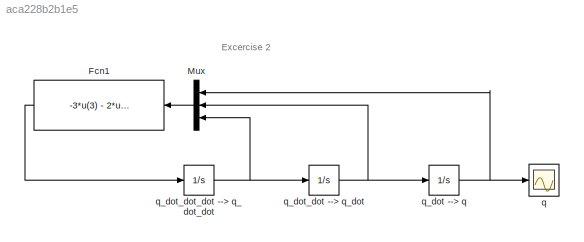
MODEL slx_aca228b2b1e5
KIND model
BLOCK [Fcn] Fcn1
  Expr = -3*u(3) - 2*u(2) - sin(u(1))
BLOCK [Mux] Mux
  DisplayOption = bar
  Inputs = 3
  Ports = [3, 1]
BLOCK [Scope] q
  DataFormat = StructureWithTime
  Floating = off
  NumInputPorts = 1
  Ports = [1]
  SampleTime = 0
  SaveName = ScopeData1
  ShowLegends = off
BLOCK [Integrator] q_dot --> q
  InitialCondition = q_0
  Ports = [1, 1]
BLOCK [Integrator] q_dot_dot --> q_dot
  InitialCondition = q_dot_0
  Ports = [1, 1]
BLOCK [Integrator] q_dot_dot_dot --> q_dot_dot
  InitialCondition = q_dot_dot_0
  Ports = [1, 1]
ANNOTATION (root): Excercise 2
LINE Fcn1:1 -> q_dot_dot_dot --> q_dot_dot:1
LINE Mux:1 -> Fcn1:1
NET q_dot --> q:1 -> Mux:1, q:1
NET q_dot_dot --> q_dot:1 -> Mux:2, q_dot --> q:1
NET q_dot_dot_dot --> q_dot_dot:1 -> Mux:3, q_dot_dot --> q_dot:1
note: NET lines group one-source signal fan-out (src -> all destinations, sorted); 1:1 wires keep LINE
